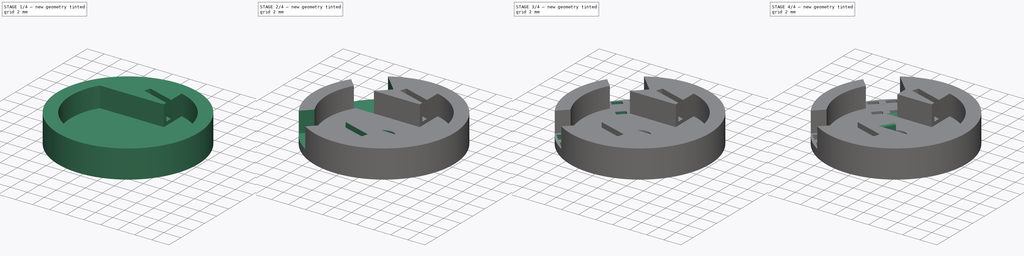
[diagram: build sequence overview — one tinted view per stage of 4, left to right]
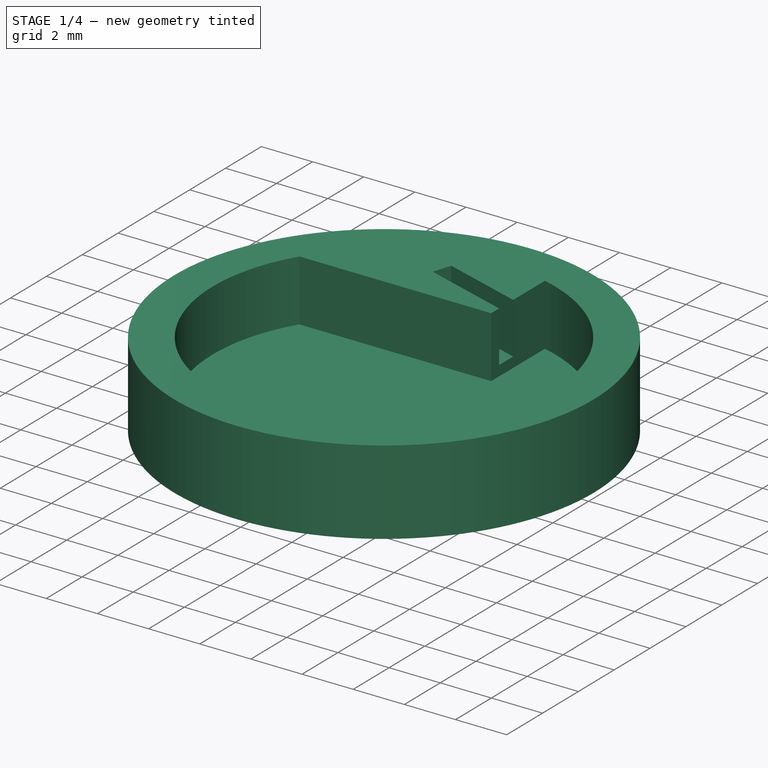
[diagram: stage 1 of 4 — iso view after this stage's code; geometry added in this stage tinted green]
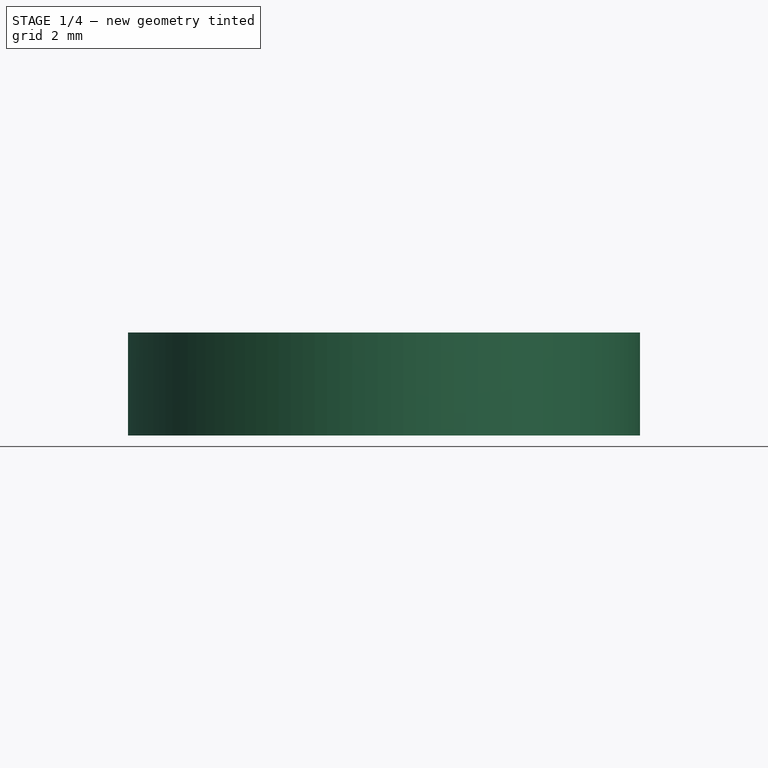
[diagram: stage 1 of 4 — front view after this stage's code; geometry added in this stage tinted green]
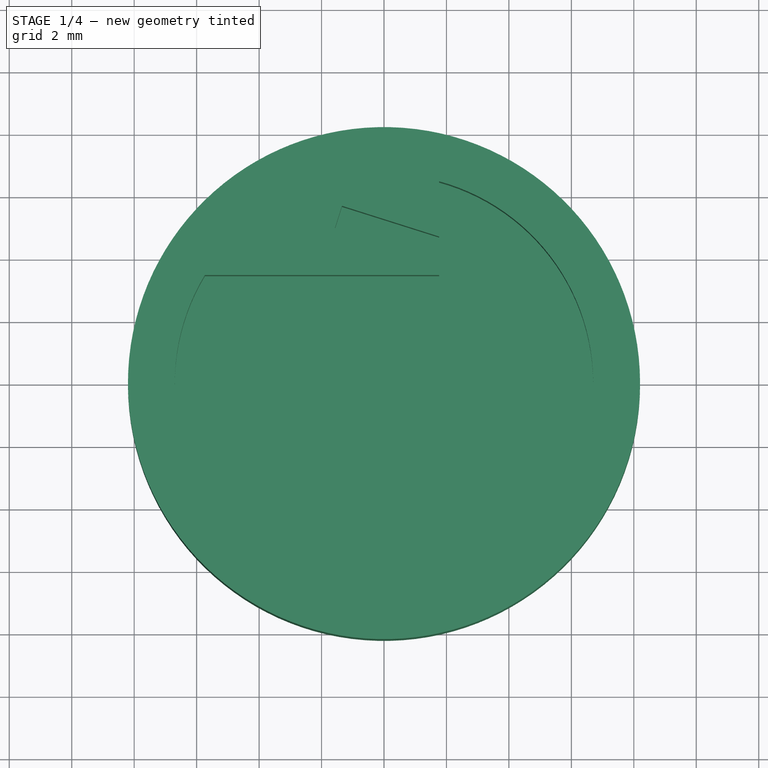
[diagram: stage 1 of 4 — top view after this stage's code; geometry added in this stage tinted green]
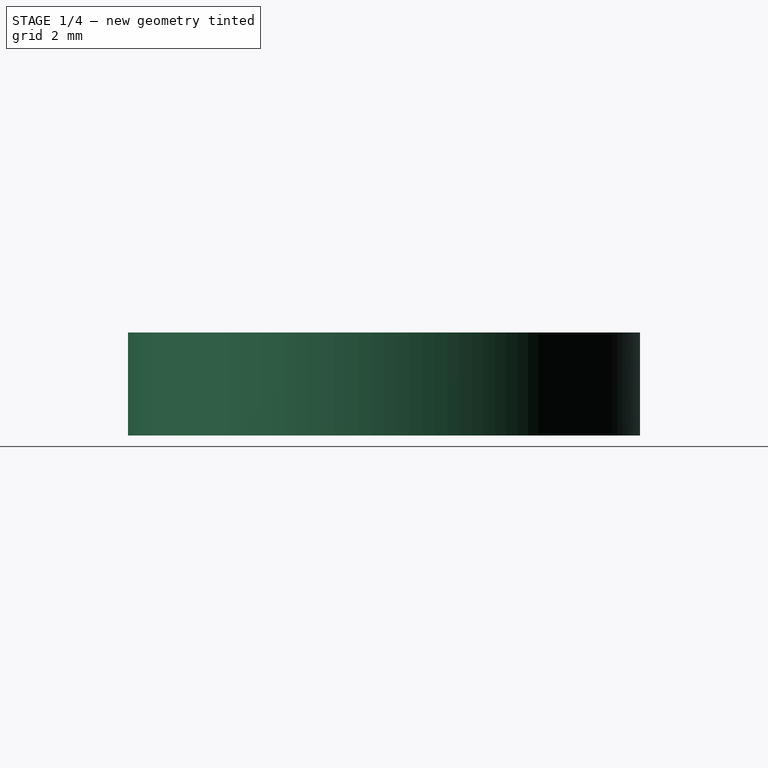
[diagram: stage 1 of 4 — right view after this stage's code; geometry added in this stage tinted green]
FCSTD DOCUMENT  (FreeCAD 0.19R22366 (Git))
Label: motorLid
License: All rights reserved
LicenseURL: http://en.wikipedia.org/wiki/All_rights_reserved
objects: Sketcher::SketchObject×11, PartDesign::Pocket×7, PartDesign::Body×4, PartDesign::Pad×3, PartDesign::PolarPattern×2, PartDesign::Mirrored×1
note: 38 computed .brp shape members not serialized (recipe doc carries the construction recipe); baked Part::Feature solids carry a one-line shape summary decoded from their .brp

FEATURE [Sketcher::SketchObject] Sketch
  MapMode = 5
  Support = -> [XY_Plane]
  expr: Constraints[1] = 16.4 / 2
  sketch-geometry (1):
    g0: Circle CenterX=0 CenterY=0 CenterZ=0 NormalX=0 NormalY=0 NormalZ=1 AngleXU=0 Radius=8.2
  constraints (2):
    c: Coincident(g0,g-1)
    c: Radius(g0) = 8.2
FEATURE [PartDesign::Pad] Pad
  AllowMultiFace = false
  Length = 3.3
  Length2 = 100
  Profile = -> Sketch
  Type = 0
FEATURE [Sketcher::SketchObject] Sketch001
  MapMode = 5
  Placement = pos=(0,0,3.3) rot=(0,0,1;0rad)
  Support = -> [Pad]
  expr: Constraints[15] = 16.4 / 2 - 1.5
  sketch-geometry (6):
    g0: ArcOfCircle CenterX=0 CenterY=0 CenterZ=0 NormalX=0 NormalY=0 NormalZ=1 AngleXU=0 Radius=6.7 StartAngle=5.73992 EndAngle=7.58746
    g1: ArcOfCircle CenterX=0 CenterY=0 CenterZ=0 NormalX=0 NormalY=0 NormalZ=1 AngleXU=0 Radius=6.7 StartAngle=2.59833 EndAngle=4.44587
    g2: LineSegment StartX=-5.73538 StartY=3.46344 StartZ=0 EndX=1.76462 EndY=3.46344 EndZ=0
    g3: LineSegment StartX=1.76462 StartY=3.46344 StartZ=0 EndX=1.76462 EndY=6.46344 EndZ=0
    g4: LineSegment StartX=5.73538 StartY=-3.46344 StartZ=0 EndX=-1.76462 EndY=-3.46344 EndZ=0
    g5: LineSegment StartX=-1.76462 StartY=-3.46344 StartZ=0 EndX=-1.76462 EndY=-6.46344 EndZ=0
  constraints (18):
    c: Coincident(g0,g-1)
    c: Coincident(g1,g0)
    c: Equal(g0,g1)
    c: Coincident(g2,g1)
    c: Horizontal(g2)
    c: Coincident(g3,g2)
    c: Coincident(g3,g0)
    c: Coincident(g4,g0)
    c: Horizontal(g4)
    c: Coincident(g5,g4)
    c: Coincident(g5,g1)
    c: Vertical(g3)
    c: Vertical(g5)
    c: Equal(g5,g3)
    c: Equal(g4,g2)
    c: Radius(g0) = 6.7
    c: Distance(g2) = 7.5
    c: Distance(g3) = 3
FEATURE [PartDesign::Pocket] Pocket
  AllowMultiFace = false
  BaseFeature = -> Pad
  Length = 2.4
  Length2 = 100
  Profile = -> Sketch001
  Type = 0
FEATURE [Sketcher::SketchObject] Sketch002
  ExternalGeometry = -> [Pocket]
  MapMode = 5
  Placement = pos=(0,0,3.3) rot=(0,0,1;0rad)
  Support = -> [Pocket]
  sketch-geometry (4):
    g0: LineSegment StartX=-1.57238 StartY=4.96344 StartZ=0 EndX=1.76462 EndY=3.90778 EndZ=0
    g1: LineSegment StartX=-1.57238 StartY=4.96344 StartZ=0 EndX=-1.34617 EndY=5.67852 EndZ=0
    g2: LineSegment StartX=-1.34617 StartY=5.67852 StartZ=0 EndX=1.76462 EndY=4.69442 EndZ=0
    g3: LineSegment StartX=1.76462 StartY=4.69442 StartZ=0 EndX=1.76462 EndY=3.90778 EndZ=0
  constraints (11):
    c: Coincident(g1,g0)
    c: Coincident(g2,g1)
    c: Coincident(g3,g2)
    c: Coincident(g3,g0)
    c: PointOnObject(g2,g-3)
    c: PointOnObject(g0,g-3)
    c: Perpendicular(g2,g1)
    c: Parallel(g0,g2)
    c: Distance(g0) = 3.5
    c: DistanceY(g-3,g0) = 1.5
    c: Distance(g1) = 0.75
FEATURE [PartDesign::Pocket] Pocket001
  AllowMultiFace = false
  BaseFeature = -> Pocket
  Length = 2
  Length2 = 100
  Profile = -> Sketch002
  Type = 0
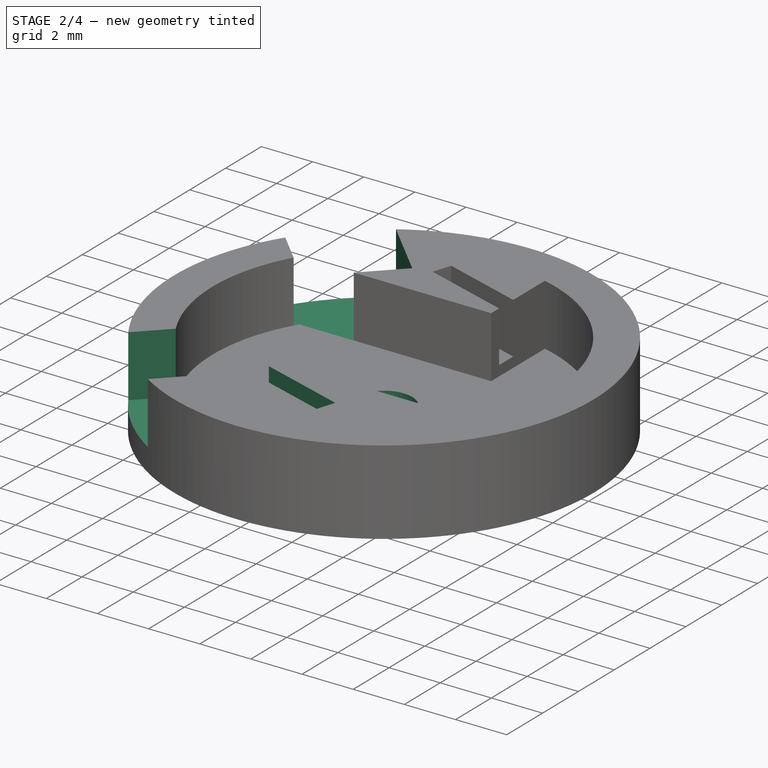
[diagram: stage 2 of 4 — iso view after this stage's code; geometry added in this stage tinted green]
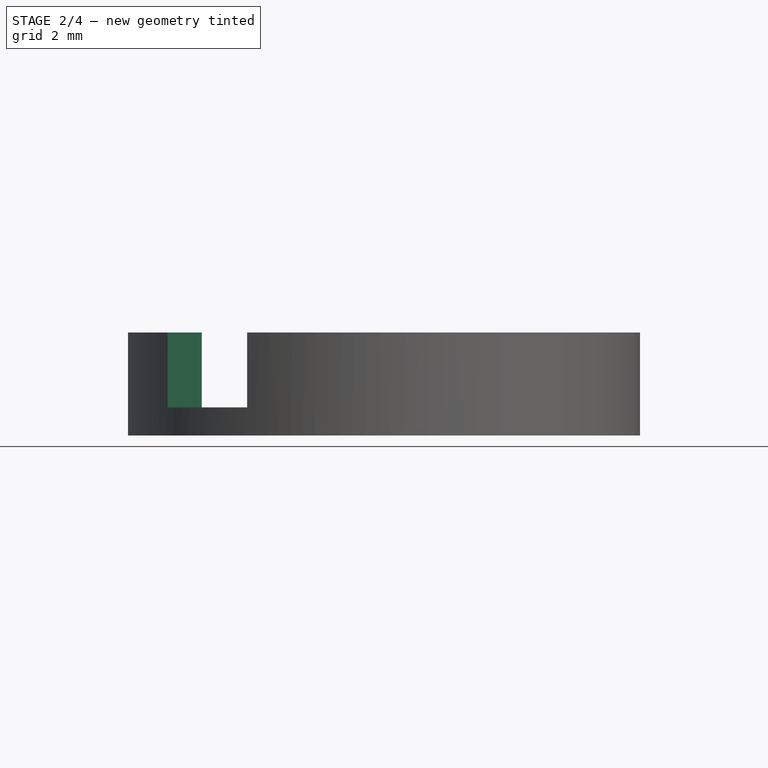
[diagram: stage 2 of 4 — front view after this stage's code; geometry added in this stage tinted green]
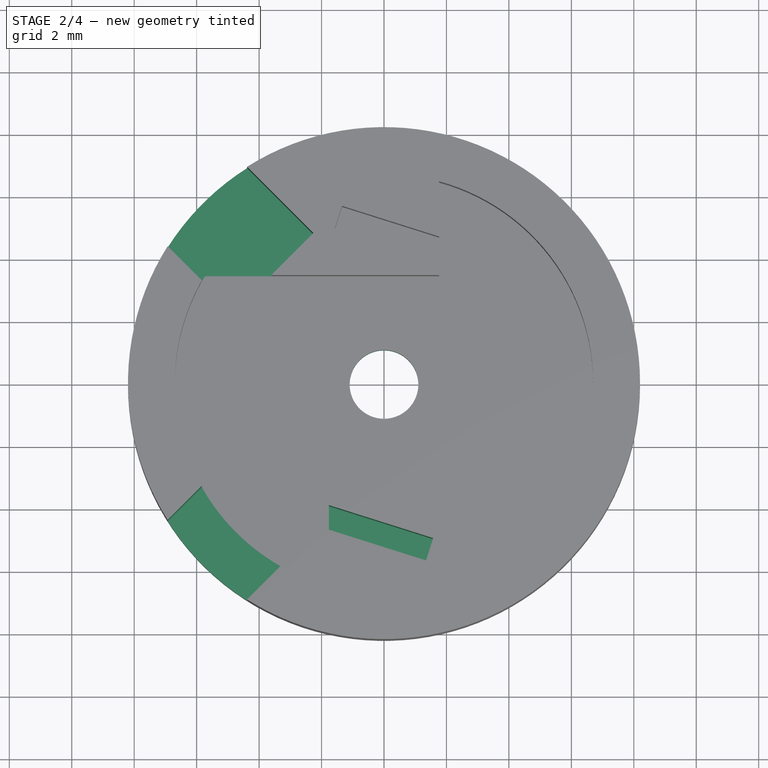
[diagram: stage 2 of 4 — top view after this stage's code; geometry added in this stage tinted green]
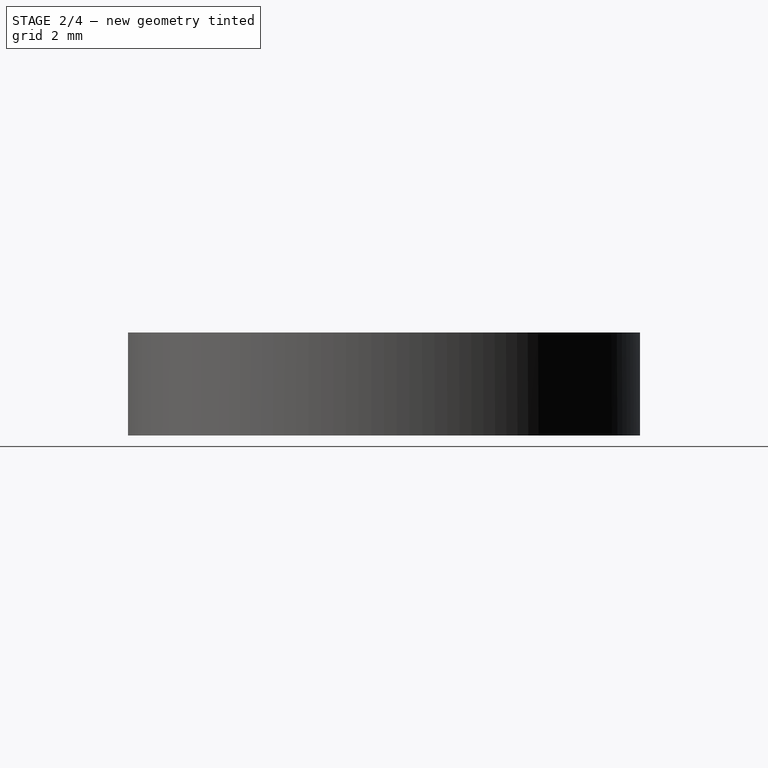
[diagram: stage 2 of 4 — right view after this stage's code; geometry added in this stage tinted green]
FEATURE [PartDesign::PolarPattern] PolarPattern
  Angle = 360
  Axis = -> Sketch002 [N_Axis]
  BaseFeature = -> Pocket001
  Occurrences = 2
  Originals = -> [Pocket001]
FEATURE [PartDesign::Body] Body001
  Group = -> [Sketch004,Pad001]
  Origin = -> Origin001
  Placement = pos=(0,0,1.3) rot=(0,0,1;0rad)
  Tip = -> Pad001
FEATURE [PartDesign::Pocket] Pocket002
  AllowMultiFace = false
  BaseFeature = -> PolarPattern
  Length = 2.4
  Length2 = 100
  Profile = -> Sketch003
  Type = 0
FEATURE [PartDesign::Body] Body002
  Group = -> [Sketch005,Pad002]
  Origin = -> Origin002
  Placement = pos=(0,0,1.3) rot=(0,0,1;3.14159rad)
  Tip = -> Pad002
FEATURE [Sketcher::SketchObject] Sketch006
  MapMode = 5
  Placement = pos=(0,0,0) rot=(1,0,0;3.14159rad)
  Support = -> [Pocket002]
  sketch-geometry (1):
    g0: Circle CenterX=0 CenterY=0 CenterZ=0 NormalX=0 NormalY=0 NormalZ=1 AngleXU=0 Radius=1.1
  constraints (2):
    c: Coincident(g0,g-1)
    c: Radius(g0) = 1.1
FEATURE [PartDesign::Pocket] Pocket003
  AllowMultiFace = false
  BaseFeature = -> Pocket002
  Length = 5
  Length2 = 100
  Profile = -> Sketch006
  Type = 1
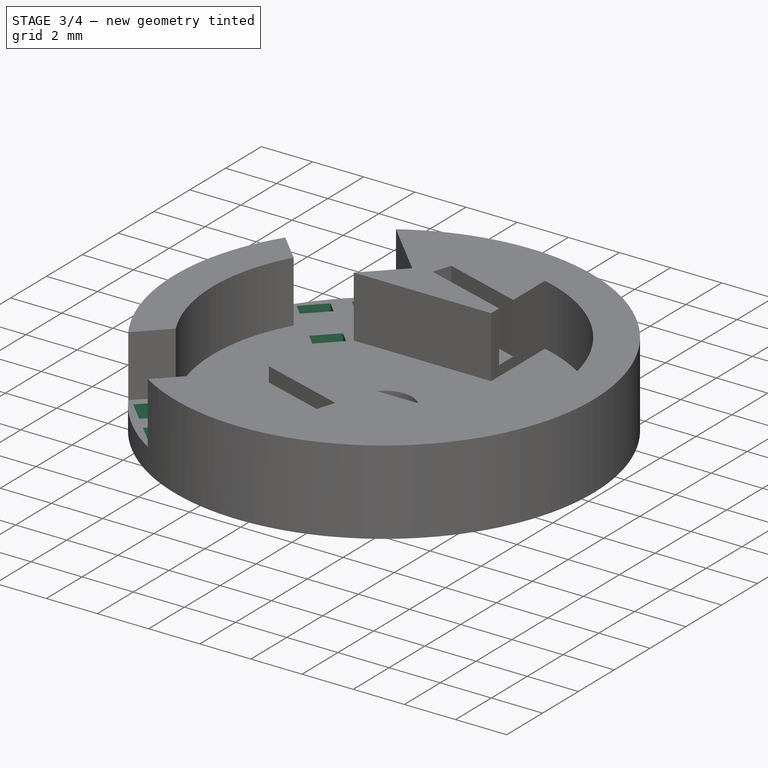
[diagram: stage 3 of 4 — iso view after this stage's code; geometry added in this stage tinted green]
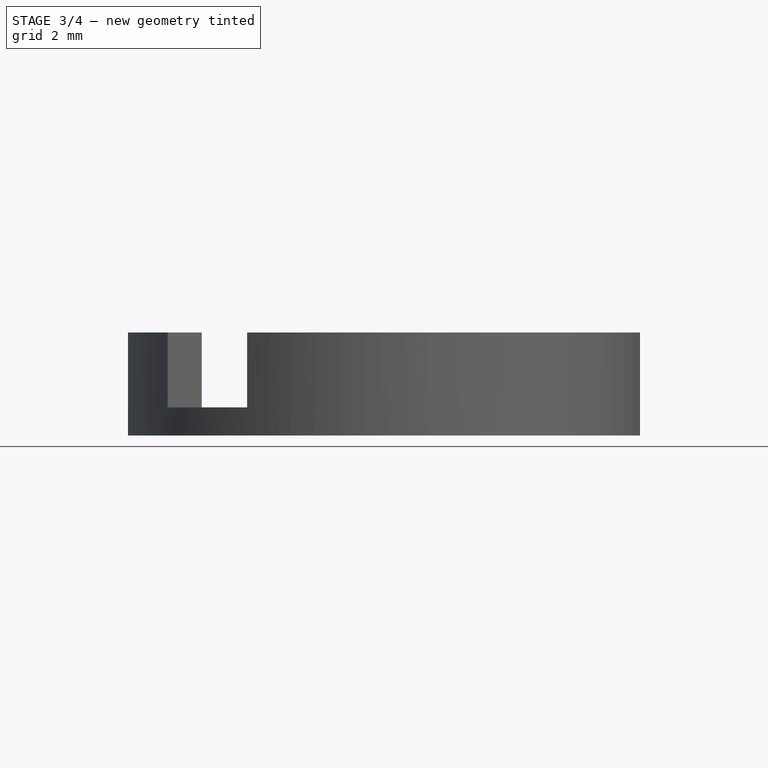
[diagram: stage 3 of 4 — front view after this stage's code; geometry added in this stage tinted green]
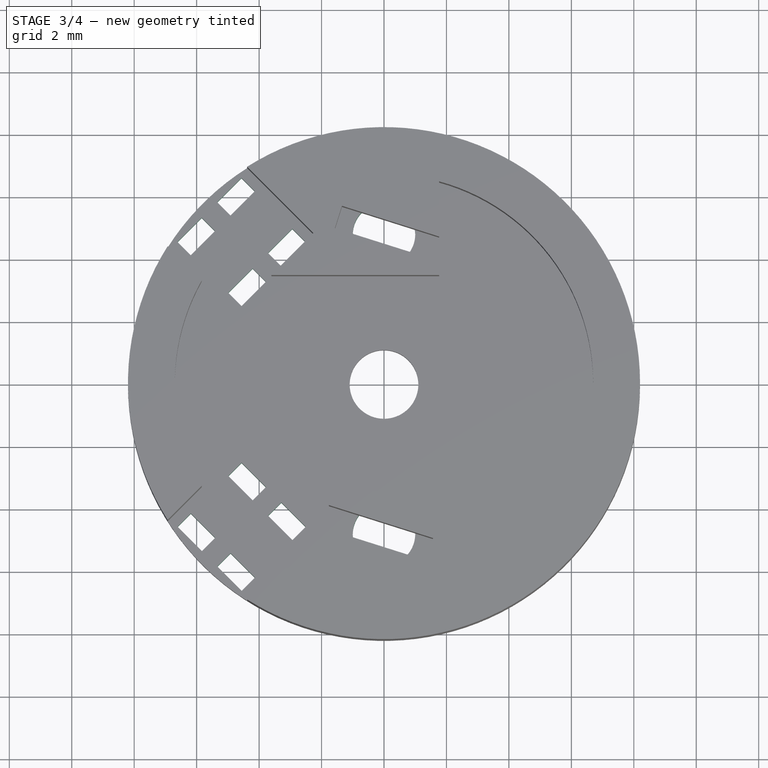
[diagram: stage 3 of 4 — top view after this stage's code; geometry added in this stage tinted green]
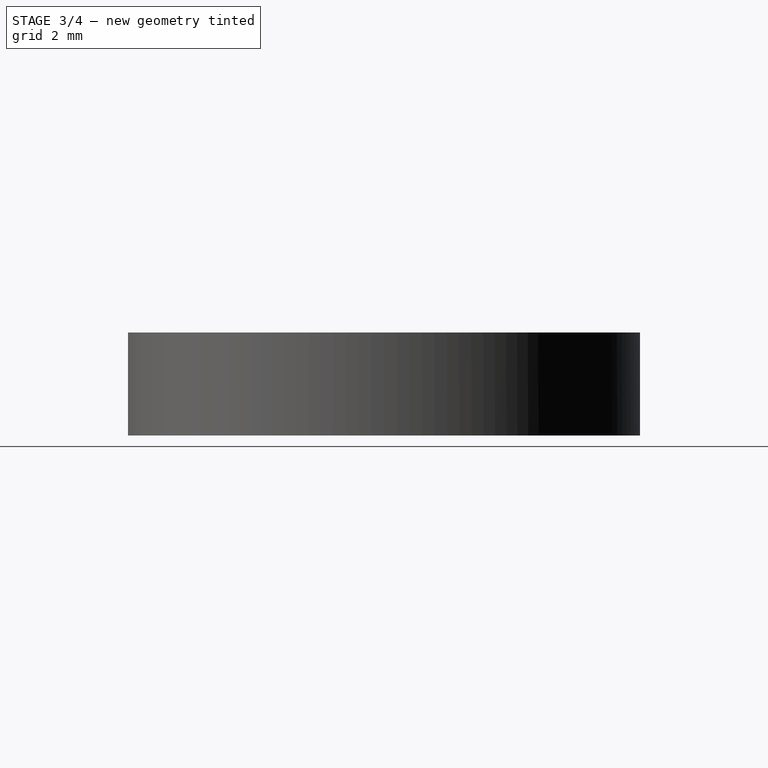
[diagram: stage 3 of 4 — right view after this stage's code; geometry added in this stage tinted green]
FEATURE [Sketcher::SketchObject] Sketch007
  ExternalGeometry = -> [Sketch003]
  MapMode = 5
  Support = -> [XY_Plane]
  expr: Constraints[20] = (3.6 - 2.3) / 2 - 0.3
  expr: Constraints[21] = (3.6 - 2.3) / 2 - 0.3
  sketch-geometry (18):
    g0: LineSegment StartX=-4.56084 StartY=-2.51023 StartZ=0 EndX=-4.9851 EndY=-2.93449 EndZ=0
    g1: LineSegment StartX=-4.9851 StartY=-2.93449 StartZ=0 EndX=-4.20729 EndY=-3.71231 EndZ=0
    g2: LineSegment StartX=-4.20729 StartY=-3.71231 StartZ=0 EndX=-3.78302 EndY=-3.28805 EndZ=0
    g3: LineSegment StartX=-3.78302 StartY=-3.28805 StartZ=0 EndX=-4.56084 EndY=-2.51023 EndZ=0
    g4: LineSegment StartX=-3.71231 StartY=-4.20729 StartZ=0 EndX=-2.93449 EndY=-4.9851 EndZ=0
    g5: LineSegment StartX=-3.28805 StartY=-3.78302 StartZ=0 EndX=-3.71231 EndY=-4.20729 EndZ=0
    g6: LineSegment StartX=-2.93449 StartY=-4.9851 StartZ=0 EndX=-2.51023 EndY=-4.56084 EndZ=0
    g7: LineSegment StartX=-2.51023 StartY=-4.56084 StartZ=0 EndX=-3.28805 EndY=-3.78302 EndZ=0
    g8: LineSegment StartX=-5.33866 StartY=-5.83363 StartZ=0 EndX=-4.56084 EndY=-6.61145 EndZ=0
    g9: LineSegment StartX=-4.91439 StartY=-5.40937 StartZ=0 EndX=-5.33866 EndY=-5.83363 EndZ=0
    g10: LineSegment StartX=-4.56084 StartY=-6.61145 StartZ=0 EndX=-4.13657 EndY=-6.18718 EndZ=0
    g11: LineSegment StartX=-4.13657 StartY=-6.18718 StartZ=0 EndX=-4.91439 EndY=-5.40937 EndZ=0
    g12: LineSegment StartX=-6.61145 StartY=-4.56084 StartZ=0 EndX=-5.83363 EndY=-5.33866 EndZ=0
    g13: LineSegment StartX=-5.83363 StartY=-5.33866 StartZ=0 EndX=-5.40937 EndY=-4.91439 EndZ=0
    g14: LineSegment StartX=-6.18718 StartY=-4.13657 StartZ=0 EndX=-6.61145 EndY=-4.56084 EndZ=0
    g15: LineSegment StartX=-5.40937 StartY=-4.91439 StartZ=0 EndX=-6.18718 EndY=-4.13657 EndZ=0
    g16: LineSegment [constr] StartX=-3.71231 StartY=-4.20729 StartZ=0 EndX=-4.91439 EndY=-5.40937 EndZ=0
    g17: LineSegment [constr] StartX=-4.9851 StartY=-2.93449 StartZ=0 EndX=-6.18718 EndY=-4.13657 EndZ=0
  constraints (52):
    c: Coincident(g0,g1)
    c: Coincident(g1,g2)
    c: Coincident(g2,g3)
    c: Coincident(g3,g0)
    c: Parallel(g3,g1)
    c: Parallel(g0,g2)
    c: Perpendicular(g3,g2)
    c: Parallel(g3,g-3)
    c: Coincident(g5,g4)
    c: Coincident(g4,g6)
    c: Coincident(g6,g7)
    c: Coincident(g7,g5)
    c: Parallel(g7,g4)
    c: Parallel(g5,g6)
    c: Perpendicular(g7,g6)
    c: Equal(g2,g5)
    c: Equal(g7,g3)
    c: PointOnObject(g6,g-3)
    c: Parallel(g7,g-3)
    c: PointOnObject(g2,g-3)
    c: Distance(g-3,g0) = 0.35
    c: Distance(g6,g-4) = 0.35
    c: Distance(g4) = 1.1
    c: Distance(g0) = 0.6
    c: Coincident(g9,g8)
    c: Coincident(g8,g10)
    c: Coincident(g10,g11)
    c: Coincident(g11,g9)
    c: Parallel(g11,g8)
    c: Parallel(g9,g10)
    c: Perpendicular(g11,g10)
    c: Equal(g4,g8) = 0.5
    c: Coincident(g14,g12)
    c: Coincident(g12,g13)
    c: Coincident(g13,g15)
    c: Coincident(g15,g14)
    c: Parallel(g15,g12)
    c: Parallel(g14,g13)
    c: Perpendicular(g15,g13)
    c: Parallel(g15,g1)
    c: Equal(g9,g5)
    c: Equal(g13,g9)
    c: Equal(g15,g11)
    c: Parallel(g11,g4)
    c: Coincident(g16,g4)
    c: Coincident(g16,g9)
    c: Coincident(g17,g0)
    c: Coincident(g17,g14)
    c: Parallel(g0,g17)
    c: Parallel(g16,g5)
    c: Equal(g16,g17)
    c: Distance(g0,g12) = 2.9
FEATURE [PartDesign::Pocket] Pocket004
  AllowMultiFace = false
  BaseFeature = -> Pocket003
  Length = 5
  Length2 = 100
  Profile = -> Sketch007
  Reversed = true
  Type = 1
FEATURE [PartDesign::PolarPattern] PolarPattern001
  Angle = 90
  Axis = -> Sketch007 [N_Axis]
  BaseFeature = -> Pocket004
  Occurrences = 2
  Originals = -> [Pocket004]
  Reversed = true
FEATURE [Sketcher::SketchObject] Sketch008
  MapMode = 5
  Support = -> [XY_Plane]
  expr: Constraints[2] = 9.6 / 2
  sketch-geometry (1):
    g0: Circle CenterX=0 CenterY=4.8 CenterZ=0 NormalX=0 NormalY=0 NormalZ=1 AngleXU=0 Radius=1
  constraints (3):
    c: PointOnObject(g0,g-2)
    c: Radius(g0) = 1
    c: Distance(g-1,g0) = 4.8
FEATURE [PartDesign::Pocket] Pocket005
  AllowMultiFace = false
  BaseFeature = -> PolarPattern001
  Length = 1
  Length2 = 100
  Profile = -> Sketch008
  Reversed = true
  Type = 2
FEATURE [PartDesign::Mirrored] Mirrored
  BaseFeature = -> Pocket005
  MirrorPlane = -> XZ_Plane
  Originals = -> [Pocket005]
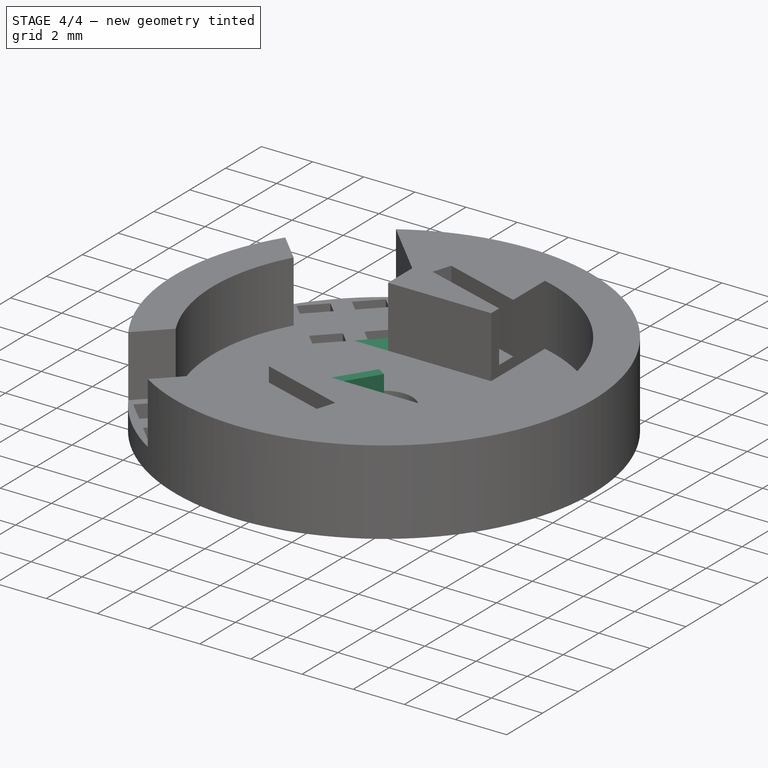
[diagram: stage 4 of 4 — iso view after this stage's code; geometry added in this stage tinted green]
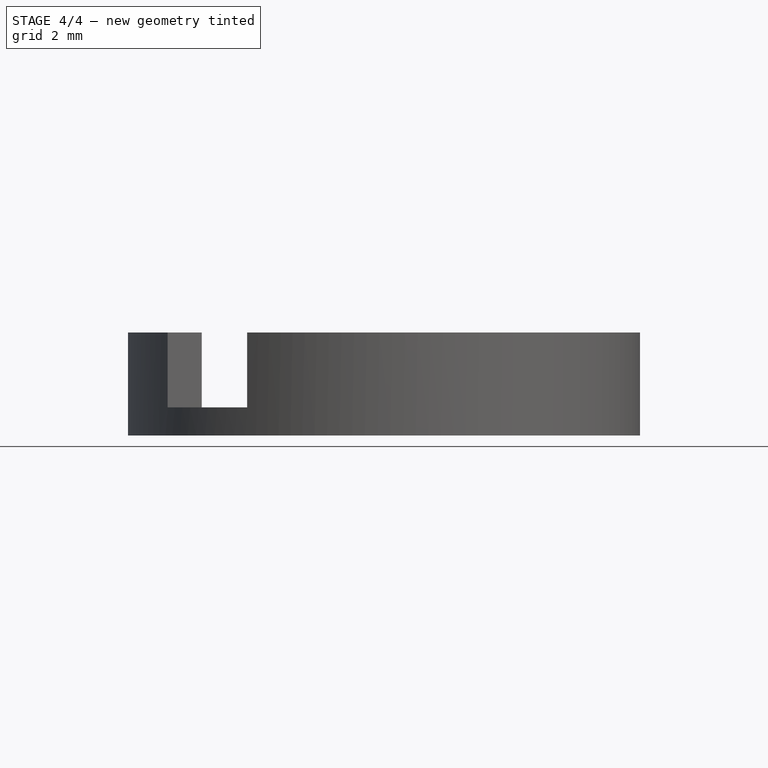
[diagram: stage 4 of 4 — front view after this stage's code; geometry added in this stage tinted green]
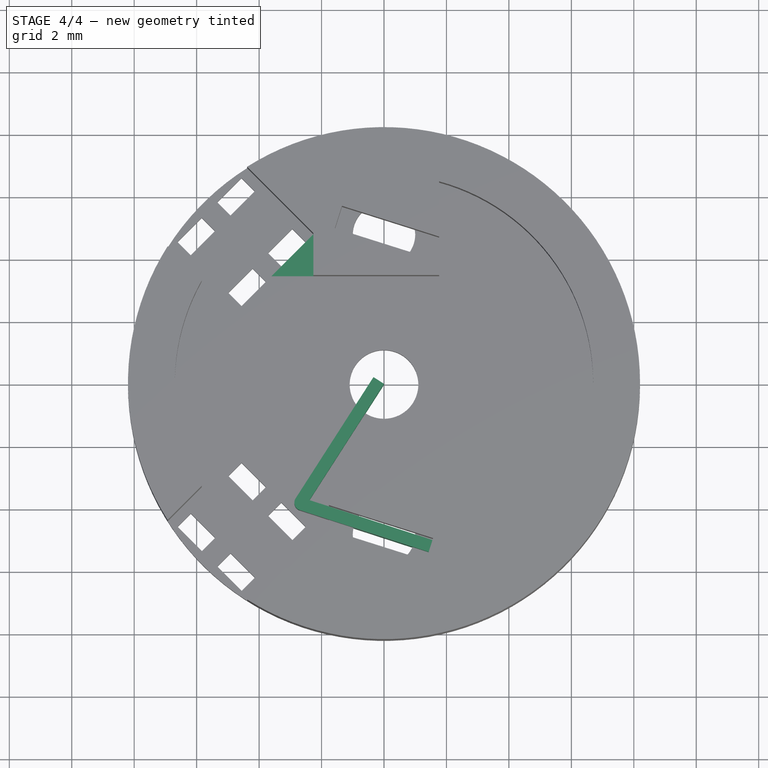
[diagram: stage 4 of 4 — top view after this stage's code; geometry added in this stage tinted green]
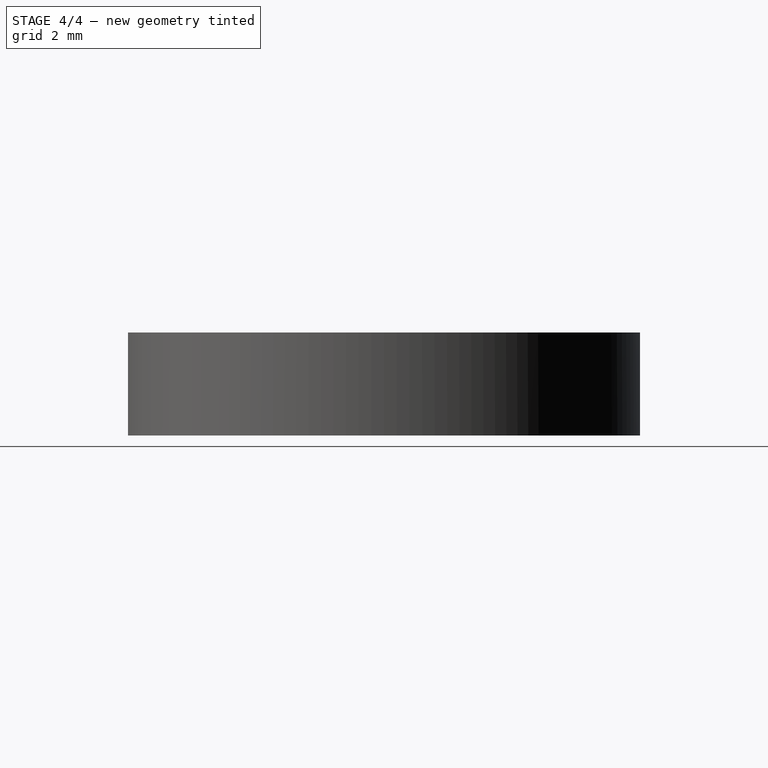
[diagram: stage 4 of 4 — right view after this stage's code; geometry added in this stage tinted green]
FEATURE [Sketcher::SketchObject] Sketch003
  ExternalGeometry = -> [PolarPattern]
  MapMode = 5
  Placement = pos=(0,0,3.3) rot=(0,0,1;0rad)
  Support = -> [PolarPattern]
  sketch-geometry (14):
    g0: LineSegment StartX=-2.26274 StartY=-4.80833 StartZ=0 EndX=-4.80833 EndY=-2.26274 EndZ=0
    g1: LineSegment StartX=-4.80833 StartY=-2.26274 StartZ=0 EndX=-6.92965 EndY=-4.38406 EndZ=0
    g2: LineSegment [constr] StartX=-6.92965 StartY=-4.38406 StartZ=0 EndX=-4.38406 EndY=-6.92965 EndZ=0
    g3: LineSegment StartX=-4.38406 StartY=-6.92965 StartZ=0 EndX=-2.26274 EndY=-4.80833 EndZ=0
    g4: LineSegment StartX=-4.80833 StartY=2.26274 StartZ=0 EndX=-2.26274 EndY=4.80833 EndZ=0
    g5: LineSegment StartX=-2.26274 StartY=4.80833 StartZ=0 EndX=-4.38406 EndY=6.92965 EndZ=0
    g6: LineSegment [constr] StartX=-4.38406 StartY=6.92965 StartZ=0 EndX=-6.92965 EndY=4.38406 EndZ=0
    g7: LineSegment StartX=-6.92965 StartY=4.38406 StartZ=0 EndX=-4.80833 EndY=2.26274 EndZ=0
    g8: LineSegment StartX=-4.38406 StartY=6.92965 StartZ=0 EndX=-5.09117 EndY=7.63675 EndZ=0
    g9: LineSegment StartX=-6.92965 StartY=4.38406 StartZ=0 EndX=-7.63675 EndY=5.09117 EndZ=0
    g10: LineSegment StartX=-5.09117 StartY=7.63675 StartZ=0 EndX=-7.63675 EndY=5.09117 EndZ=0
    g11: LineSegment StartX=-6.92965 StartY=-4.38406 StartZ=0 EndX=-7.63675 EndY=-5.09117 EndZ=0
    g12: LineSegment StartX=-7.63675 StartY=-5.09117 StartZ=0 EndX=-5.09117 EndY=-7.63675 EndZ=0
    g13: LineSegment StartX=-4.38406 StartY=-6.92965 StartZ=0 EndX=-5.09117 EndY=-7.63675 EndZ=0
  constraints (40):
    c: Coincident(g0,g1)
    c: Coincident(g1,g2)
    c: Coincident(g2,g3)
    c: Coincident(g3,g0)
    c: Distance(g2) = 3.6
    c: Distance(g1) = 3
    c: Perpendicular(g2,g1)
    c: Parallel(g1,g3)
    c: Parallel(g2,g0)
    c: PointOnObject(g2,g-3)
    c: PointOnObject(g1,g-3)
    c: Coincident(g4,g5)
    c: Coincident(g5,g6)
    c: Coincident(g6,g7)
    c: Coincident(g7,g4)
    c: Equal(g2,g6) = 3.6
    c: Equal(g1,g5) = 2.9
    c: Perpendicular(g6,g5)
    c: Parallel(g5,g7)
    c: Parallel(g6,g4)
    c: PointOnObject(g5,g-3)
    c: PointOnObject(g6,g-3)
    c: Parallel(g1,g4)
    c: Coincident(g8,g5)
    c: Coincident(g9,g7)
    c: Coincident(g10,g9)
    c: Coincident(g10,g8)
    c: Parallel(g8,g5)
    c: Parallel(g9,g7)
    c: Parallel(g4,g10)
    c: Coincident(g12,g13)
    c: Coincident(g11,g12)
    c: Coincident(g11,g1)
    c: Coincident(g13,g3)
    c: Parallel(g13,g3)
    c: Parallel(g11,g1)
    c: Parallel(g12,g0)
    c: Equal(g11,g9)
    c: Distance(g9) = 1
    c: Angle(g5,g-1) = 0.785398
FEATURE [Sketcher::SketchObject] Sketch004
  MapMode = 5
  Support = -> [XY_Plane001]
  sketch-geometry (10):
    g0: LineSegment StartX=0 StartY=0 StartZ=0 EndX=-2.38998 EndY=-3.72333 EndZ=0
    g1: LineSegment StartX=-2.38998 StartY=-3.72333 StartZ=0 EndX=1.57 EndY=-5.01 EndZ=0
    g2: LineSegment StartX=1.57 StartY=-5.01 StartZ=0 EndX=1.44639 EndY=-5.39042 EndZ=0
    g3: LineSegment StartX=1.44639 StartY=-5.39042 StartZ=0 EndX=-2.69848 EndY=-4.04367 EndZ=0
    g4: LineSegment StartX=-0.336619 StartY=0.216073 StartZ=0 EndX=0 EndY=0 EndZ=0
    g5: LineSegment [constr] StartX=1.57 StartY=-5.01 StartZ=0 EndX=1.57 EndY=0 EndZ=0
    g6: LineSegment [constr] StartX=1.57 StartY=0 StartZ=0 EndX=0 EndY=0 EndZ=0
    g7: ArcOfCircle CenterX=-2.62123 CenterY=-3.80591 CenterZ=0 NormalX=0 NormalY=0 NormalZ=1 AngleXU=0 Radius=0.25 StartAngle=2.57094 EndAngle=4.39823
    g8: LineSegment StartX=-0.336619 StartY=0.216073 StartZ=0 EndX=-2.83161 EndY=-3.67086 EndZ=0
    g9: LineSegment [constr] StartX=-2.83161 StartY=-3.67086 StartZ=0 EndX=1.54325 EndY=-5.09234 EndZ=0
  constraints (27):
    c: Coincident(g0,g-1)
    c: Coincident(g1,g0)
    c: Coincident(g2,g1)
    c: Coincident(g3,g2)
    c: Coincident(g4,g0)
    c: Coincident(g5,g1)
    c: Vertical(g5)
    c: Coincident(g6,g5)
    c: Coincident(g6,g0)
    c: Horizontal(g6)
    c: Distance(g6) = 1.57
    c: Distance(g5) = 5.01
    c: Parallel(g1,g3)
    c: Distance(g2) = 0.4
    c: Equal(g4,g2)
    c: Perpendicular(g1,g2)
    c: Perpendicular(g0,g4)
    c: Angle(g5,g1) = 1.25664
    c: Tangent(g7,g3) = 1.5708
    c: Coincident(g8,g4)
    c: Parallel(g0,g8)
    c: Tangent(g8,g7) = -1.5708
    c: Coincident(g9,g7)
    c: PointOnObject(g9,g2)
    c: Parallel(g9,g1)
    c: Distance(g9) = 4.6
    c: Radius(g7) = 0.25
FEATURE [PartDesign::Pad] Pad001
  AllowMultiFace = false
  Length = 2
  Length2 = 100
  Profile = -> Sketch004
  Type = 0
FEATURE [Sketcher::SketchObject] Sketch005
  MapMode = 5
  Support = -> [XY_Plane002]
  sketch-geometry (10):
    g0: LineSegment StartX=0 StartY=0 StartZ=0 EndX=-2.38998 EndY=-3.72333 EndZ=0
    g1: LineSegment StartX=-2.38998 StartY=-3.72333 StartZ=0 EndX=1.57 EndY=-5.01 EndZ=0
    g2: LineSegment StartX=1.57 StartY=-5.01 StartZ=0 EndX=1.44639 EndY=-5.39042 EndZ=0
    g3: LineSegment StartX=1.44639 StartY=-5.39042 StartZ=0 EndX=-2.69848 EndY=-4.04367 EndZ=0
    g4: LineSegment StartX=-0.336619 StartY=0.216073 StartZ=0 EndX=0 EndY=0 EndZ=0
    g5: LineSegment [constr] StartX=1.57 StartY=-5.01 StartZ=0 EndX=1.57 EndY=0 EndZ=0
    g6: LineSegment [constr] StartX=1.57 StartY=0 StartZ=0 EndX=0 EndY=0 EndZ=0
    g7: ArcOfCircle CenterX=-2.62123 CenterY=-3.80591 CenterZ=0 NormalX=0 NormalY=0 NormalZ=1 AngleXU=0 Radius=0.25 StartAngle=2.57094 EndAngle=4.39823
    g8: LineSegment StartX=-0.336619 StartY=0.216073 StartZ=0 EndX=-2.83161 EndY=-3.67086 EndZ=0
    g9: LineSegment [constr] StartX=-2.83161 StartY=-3.67086 StartZ=0 EndX=1.54325 EndY=-5.09234 EndZ=0
  constraints (27):
    c: Coincident(g0,g-1)
    c: Coincident(g1,g0)
    c: Coincident(g2,g1)
    c: Coincident(g3,g2)
    c: Coincident(g4,g0)
    c: Coincident(g5,g1)
    c: Vertical(g5)
    c: Coincident(g6,g5)
    c: Coincident(g6,g0)
    c: Horizontal(g6)
    c: Distance(g6) = 1.57
    c: Distance(g5) = 5.01
    c: Parallel(g1,g3)
    c: Distance(g2) = 0.4
    c: Equal(g4,g2)
    c: Perpendicular(g1,g2)
    c: Perpendicular(g0,g4)
    c: Angle(g5,g1) = 1.25664
    c: Tangent(g7,g3) = 1.5708
    c: Coincident(g8,g4)
    c: Parallel(g0,g8)
    c: Tangent(g8,g7) = -1.5708
    c: Coincident(g9,g7)
    c: PointOnObject(g9,g2)
    c: Parallel(g9,g1)
    c: Distance(g9) = 4.6
    c: Radius(g7) = 0.25
FEATURE [PartDesign::Pad] Pad002
  AllowMultiFace = false
  Length = 2
  Length2 = 100
  Profile = -> Sketch005
  Type = 0
FEATURE [Sketcher::SketchObject] Sketch009
  ExternalGeometry = -> [Mirrored]
  MapMode = 5
  Placement = pos=(0,0,3.3) rot=(0,0,1;0rad)
  Support = -> [Mirrored]
  sketch-geometry (4):
    g0: LineSegment StartX=-2.26274 StartY=4.80833 StartZ=0 EndX=-3.60762 EndY=4.80833 EndZ=0
    g1: LineSegment StartX=-3.60762 StartY=4.80833 StartZ=0 EndX=-3.60762 EndY=3.46344 EndZ=0
    g2: LineSegment StartX=-3.60762 StartY=3.46344 StartZ=0 EndX=-2.26274 EndY=3.46344 EndZ=0
    g3: LineSegment StartX=-2.26274 StartY=3.46344 StartZ=0 EndX=-2.26274 EndY=4.80833 EndZ=0
  constraints (10):
    c: Coincident(g0,g1)
    c: Coincident(g1,g2)
    c: Coincident(g2,g3)
    c: Coincident(g3,g0)
    c: Horizontal(g0)
    c: Horizontal(g2)
    c: Vertical(g1)
    c: Vertical(g3)
    c: Coincident(g0,g-3)
    c: Coincident(g1,g-4)
FEATURE [PartDesign::Pocket] Pocket006
  AllowMultiFace = false
  BaseFeature = -> Mirrored
  Length = 0
  Length2 = 100
  Profile = -> Sketch009
  Type = 3
  UpToFace = -> Mirrored [Face9]
FEATURE [PartDesign::Body] Body  label="Lid"
  Group = -> [Sketch,Pad,Sketch001,Pocket,Sketch002,Pocket001,PolarPattern,Sketch003,Pocket002,Sketch006,Pocket003,Sketch007,Pocket004,PolarPattern001,Sketch008,Pocket005,Mirrored,Sketch009,Pocket006]
  Origin = -> Origin
  Tip = -> Pocket006
FEATURE [Sketcher::SketchObject] Sketch010
  MapMode = 5
  Support = -> [XY_Plane003]
  expr: Constraints[6] = 7.3mm
  sketch-geometry (3):
    g0: Circle CenterX=0 CenterY=0 CenterZ=0 NormalX=0 NormalY=0 NormalZ=1 AngleXU=0 Radius=2.55
    g1: Circle CenterX=1.25 CenterY=0 CenterZ=0 NormalX=0 NormalY=0 NormalZ=1 AngleXU=0 Radius=6.05
    g2: GeomPoint X=7.3 Y=0 Z=0
  constraints (7):
    c: Coincident(g0,g-1)
    c: PointOnObject(g1,g-1)
    c: Diameter(g0) = 5.1
    c: Diameter(g1) = 12.1
    c: PointOnObject(g2,g1)
    c: PointOnObject(g2,g-1)
    c: Distance(g2,g0) = 7.3
FEATURE [PartDesign::Body] Body003  label="EncoderDisc"
  Group = -> [Sketch010]
  Origin = -> Origin003
  Placement = pos=(0,0,7) rot=(0,0,1;0rad)
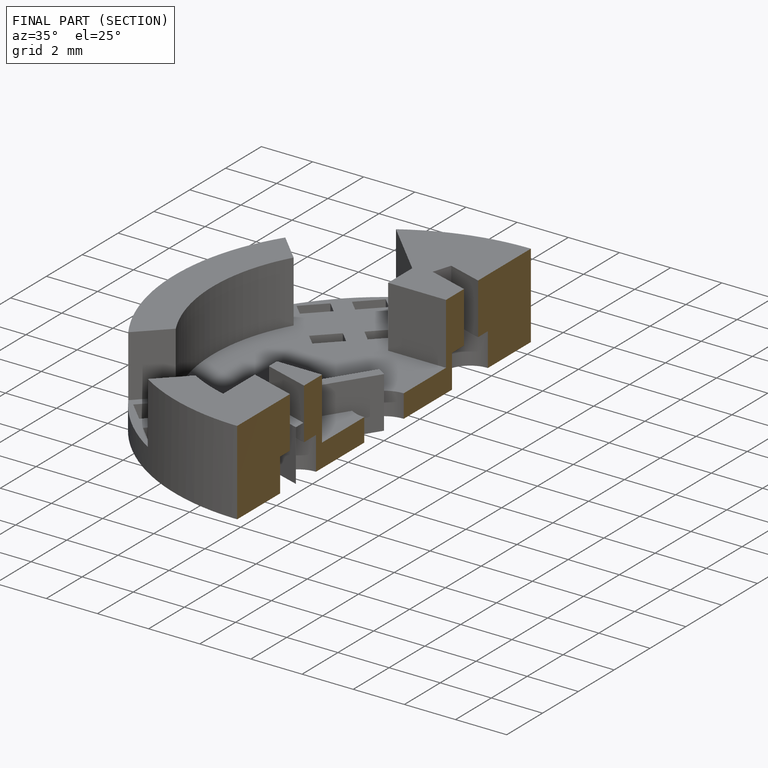
[diagram: finished part — half-section view (interior)]
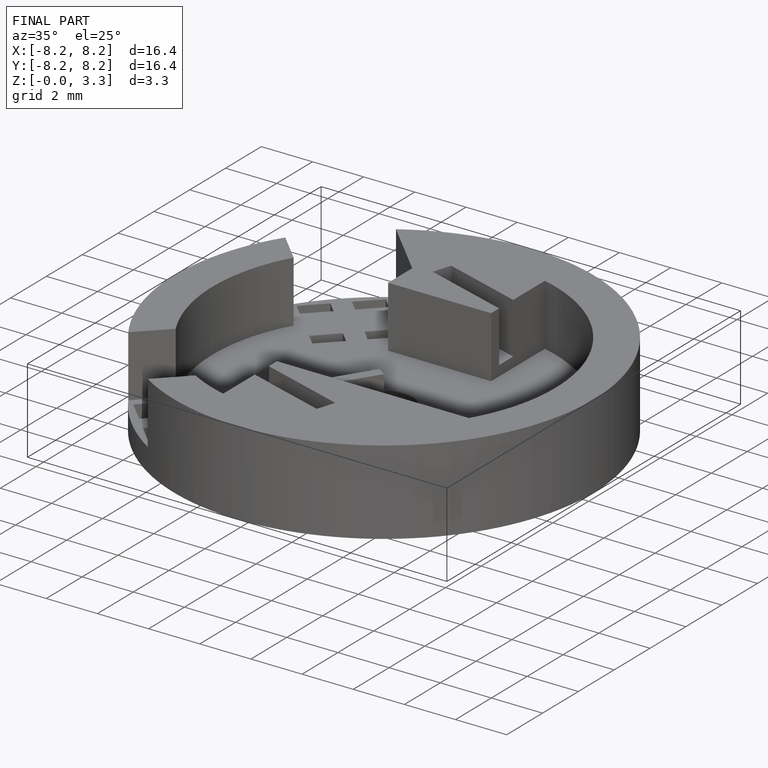
[diagram: finished part — iso view with bounding-box wireframe]
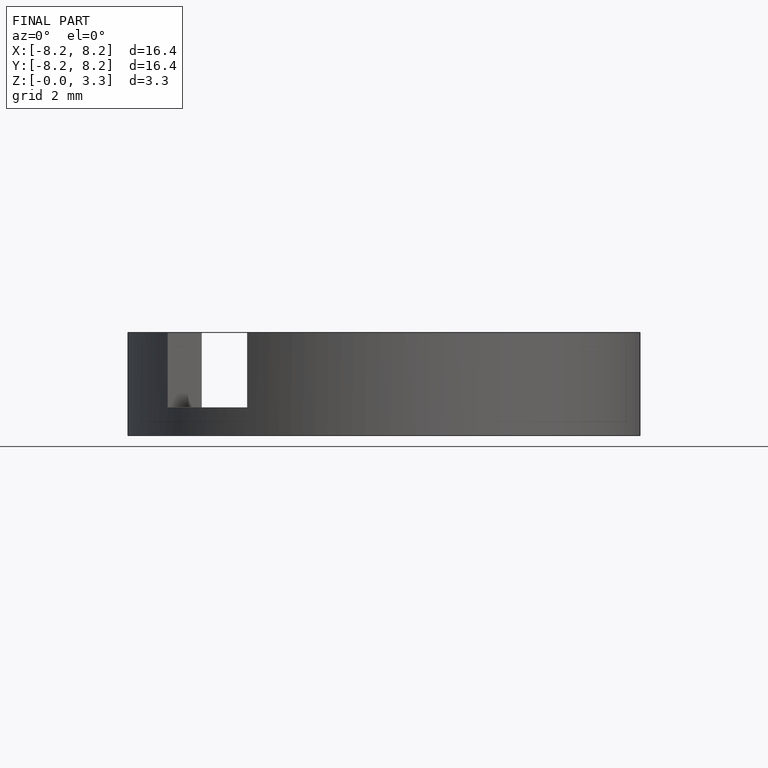
[diagram: finished part — front view with bounding-box wireframe]
